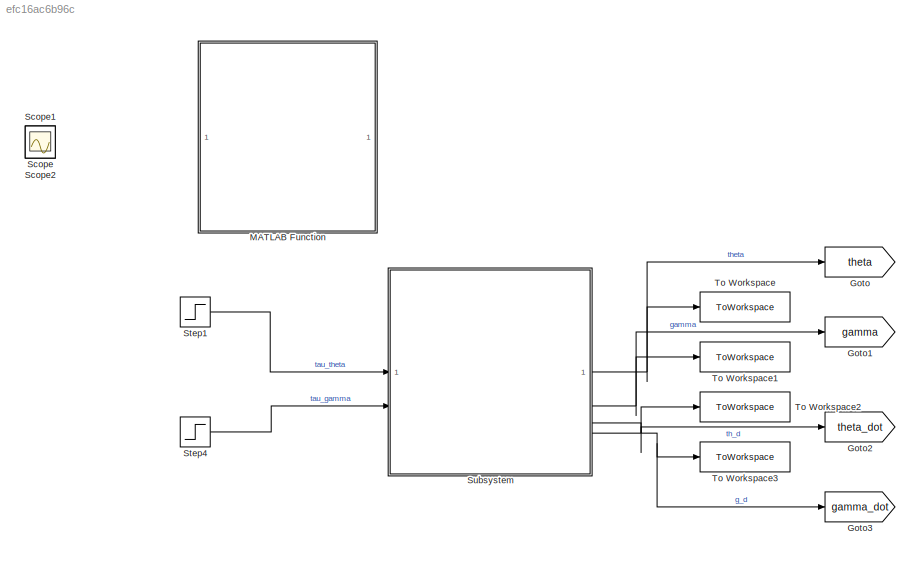
MODEL slx_efc16ac6b96c
KIND model
CONFIG AbsTol = auto
CONFIG EnableMultiTasking = off
CONFIG FixedStep = dt
CONFIG MaxStep = auto
CONFIG MinStep = auto
CONFIG RelTol = 1e-3
CONFIG SampleTimeConstraint = Unconstrained
CONFIG SolverName = FixedStepAuto
CONFIG StartTime = 0.0
CONFIG StopTime = tsim
BLOCK [Goto] Goto
  GotoTag = theta
BLOCK [Goto] Goto1
  GotoTag = gamma
BLOCK [Goto] Goto2
  GotoTag = theta_dot
BLOCK [Goto] Goto3
  GotoTag = gamma_dot
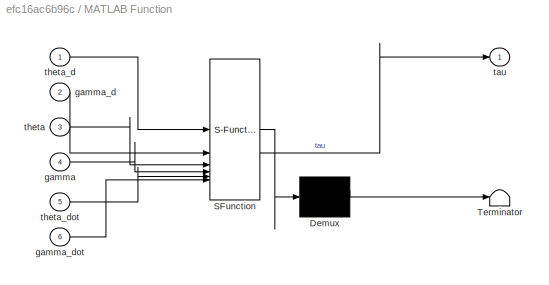
BLOCK [SubSystem] MATLAB Function
  Commented = on
  ErrorFcn = Stateflow.Translate.translate
  LibrarySourceBlock = simulink/User-Defined\nFunctions/MATLAB Function
  PermitHierarchicalResolution = ExplicitOnly
  SFBlockType = MATLAB Function
  TreatAsAtomicUnit = on
BLOCK [Demux] MATLAB Function/ Demux 
  Outputs = 1
BLOCK [S-Function] MATLAB Function/ SFunction 
  EnableBusSupport = on
  FunctionName = sf_sfun
  Parameters = Kp,Kv
  PortCounts = [6 2]
  SFcnIsStateOwnerBlock = off
  SFunctionDeploymentMode = off
  Tag = Stateflow S-Function 2
BLOCK [Terminator] MATLAB Function/ Terminator 
BLOCK [Inport] MATLAB Function/gamma
  Port = 4
BLOCK [Inport] MATLAB Function/gamma_d
  Port = 2
BLOCK [Inport] MATLAB Function/gamma_dot
  Port = 6
BLOCK [Outport] MATLAB Function/tau
BLOCK [Inport] MATLAB Function/theta
  Port = 3
BLOCK [Inport] MATLAB Function/theta_d
BLOCK [Inport] MATLAB Function/theta_dot
  Port = 5
BLOCK [Scope] Scope
  Floating = off
  IOType = viewer
  NumInputPorts = 1
  ScopeSpecificationString = Simulink.scopes.TimeScopeBlockCfg('CurrentConfiguration', extmgr.ConfigurationSet(extmgr.Configuration('Core','General UI',true),extmgr.Configuration('Core','Source UI',true),extmgr.Configuration('Sources','WiredSimulink',true),extmgr.Configuration('Visuals','Time Domain',true,'SerializedDisplays',{struct('MinYLimReal','-3.42234','MaxYLimReal','3.61448','YLabelReal','','MinYLimMag','0.00000','MaxY...<+1495ch>
BLOCK [Scope] Scope1
  Floating = off
  IOType = viewer
  NumInputPorts = 1
  ScopeSpecificationString = Simulink.scopes.TimeScopeBlockCfg('CurrentConfiguration', extmgr.ConfigurationSet(extmgr.Configuration('Core','General UI',true),extmgr.Configuration('Core','Source UI',true),extmgr.Configuration('Sources','WiredSimulink',true,'DataLoggingVariableName','ScopeData1'),extmgr.Configuration('Visuals','Time Domain',true,'SerializedDisplays',{struct('MinYLimReal','-51.85687','MaxYLimReal','51.03657','YL...<+1375ch>
BLOCK [Scope] Scope2
  Floating = off
  IOType = viewer
  NumInputPorts = 1
  ScopeSpecificationString = Simulink.scopes.TimeScopeBlockCfg('CurrentConfiguration', extmgr.ConfigurationSet(extmgr.Configuration('Core','General UI',true),extmgr.Configuration('Core','Source UI',true),extmgr.Configuration('Sources','WiredSimulink',true,'DataLoggingVariableName','ScopeData1'),extmgr.Configuration('Visuals','Time Domain',true,'SerializedDisplays',{struct('MinYLimReal','-734.53672','MaxYLimReal','793.14258','...<+1427ch>
BLOCK [Step] Step1
  After = 0
  SampleTime = dt
BLOCK [Step] Step4
  After = 0
  SampleTime = dt
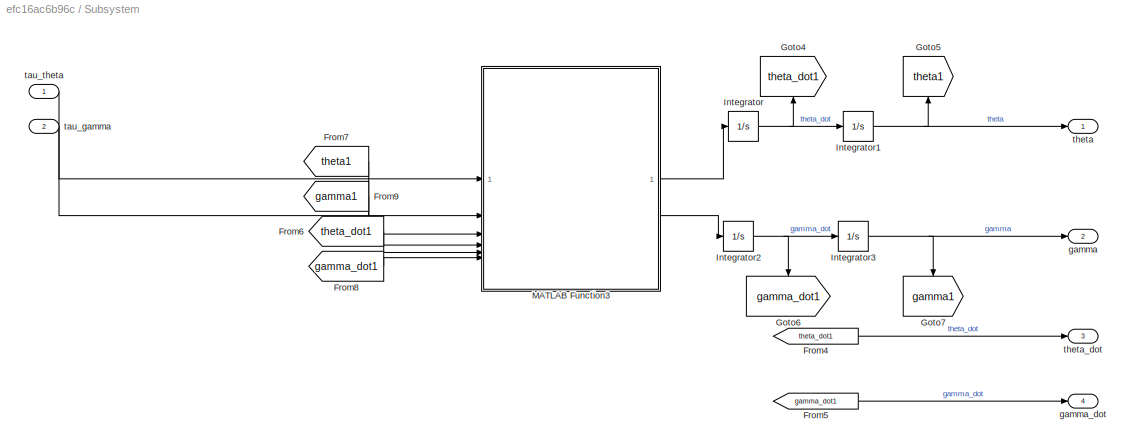
BLOCK [SubSystem] Subsystem
BLOCK [From] Subsystem/From4
  GotoTag = theta_dot1
BLOCK [From] Subsystem/From5
  GotoTag = gamma_dot1
BLOCK [From] Subsystem/From6
  GotoTag = theta_dot1
BLOCK [From] Subsystem/From7
  GotoTag = theta1
BLOCK [From] Subsystem/From8
  GotoTag = gamma_dot1
BLOCK [From] Subsystem/From9
  GotoTag = gamma1
BLOCK [Goto] Subsystem/Goto4
  GotoTag = theta_dot1
  NameLocation = right
BLOCK [Goto] Subsystem/Goto5
  GotoTag = theta1
  NameLocation = right
BLOCK [Goto] Subsystem/Goto6
  GotoTag = gamma_dot1
  NameLocation = left
BLOCK [Goto] Subsystem/Goto7
  GotoTag = gamma1
  NameLocation = left
BLOCK [Integrator] Subsystem/Integrator
  ContinuousStateAttributes = 'theta_dot'
BLOCK [Integrator] Subsystem/Integrator1
  ContinuousStateAttributes = 'theta'
  LowerSaturationLimit = -pi/3
  UpperSaturationLimit = 2*pi/9
  WrapState = on
BLOCK [Integrator] Subsystem/Integrator2
  ContinuousStateAttributes = 'gamma_dot'
BLOCK [Integrator] Subsystem/Integrator3
  ContinuousStateAttributes = 'gamma'
  LowerSaturationLimit = -pi/3
  UpperSaturationLimit = 2*pi/9
  WrapState = on
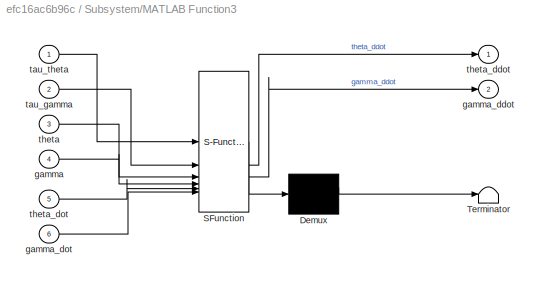
BLOCK [SubSystem] Subsystem/MATLAB Function3
  ErrorFcn = Stateflow.Translate.translate
  LibrarySourceBlock = simulink/User-Defined\nFunctions/MATLAB Function
  PermitHierarchicalResolution = ExplicitOnly
  SFBlockType = MATLAB Function
  TreatAsAtomicUnit = on
BLOCK [Demux] Subsystem/MATLAB Function3/ Demux 
  Outputs = 1
BLOCK [S-Function] Subsystem/MATLAB Function3/ SFunction 
  EnableBusSupport = on
  FunctionName = sf_sfun
  Parameters = I_by,I_hy,g,l_b,l_h,m_h
  PortCounts = [6 3]
  SFcnIsStateOwnerBlock = off
  SFunctionDeploymentMode = off
  Tag = Stateflow S-Function 3
BLOCK [Terminator] Subsystem/MATLAB Function3/ Terminator 
BLOCK [Inport] Subsystem/MATLAB Function3/gamma
  Port = 4
BLOCK [Outport] Subsystem/MATLAB Function3/gamma_ddot
  Port = 2
BLOCK [Inport] Subsystem/MATLAB Function3/gamma_dot
  Port = 6
BLOCK [Inport] Subsystem/MATLAB Function3/tau_gamma
  Port = 2
BLOCK [Inport] Subsystem/MATLAB Function3/tau_theta
BLOCK [Inport] Subsystem/MATLAB Function3/theta
  Port = 3
BLOCK [Outport] Subsystem/MATLAB Function3/theta_ddot
BLOCK [Inport] Subsystem/MATLAB Function3/theta_dot
  Port = 5
BLOCK [Outport] Subsystem/gamma
  Port = 2
BLOCK [Outport] Subsystem/gamma_dot
  Port = 4
BLOCK [Inport] Subsystem/tau_gamma
  Port = 2
BLOCK [Inport] Subsystem/tau_theta
BLOCK [Outport] Subsystem/theta
BLOCK [Outport] Subsystem/theta_dot
  Port = 3
BLOCK [ToWorkspace] To Workspace
  FixptAsFi = on
  MaxDataPoints = inf
  SampleTime = dt
  SaveFormat = Timeseries
  VariableName = theta
BLOCK [ToWorkspace] To Workspace1
  FixptAsFi = on
  MaxDataPoints = inf
  SampleTime = dt
  SaveFormat = Timeseries
  VariableName = gamma
BLOCK [ToWorkspace] To Workspace2
  FixptAsFi = on
  MaxDataPoints = inf
  SampleTime = dt
  SaveFormat = Timeseries
  VariableName = theta_dot
BLOCK [ToWorkspace] To Workspace3
  FixptAsFi = on
  MaxDataPoints = inf
  SampleTime = dt
  SaveFormat = Timeseries
  VariableName = gamma_dot
LINE Step1:1 -> Subsystem:1
LINE Step4:1 -> Subsystem:2
LINE Subsystem/From4:1 -> Subsystem/theta_dot:1
LINE Subsystem/From5:1 -> Subsystem/gamma_dot:1
LINE Subsystem/From6:1 -> Subsystem/MATLAB Function3:5
LINE Subsystem/From7:1 -> Subsystem/MATLAB Function3:3
LINE Subsystem/From8:1 -> Subsystem/MATLAB Function3:6
LINE Subsystem/From9:1 -> Subsystem/MATLAB Function3:4
NET Subsystem/Integrator1:1 -> Subsystem/Goto5:1, Subsystem/theta:1
NET Subsystem/Integrator2:1 -> Subsystem/Goto6:1, Subsystem/Integrator3:1
NET Subsystem/Integrator3:1 -> Subsystem/Goto7:1, Subsystem/gamma:1
NET Subsystem/Integrator:1 -> Subsystem/Goto4:1, Subsystem/Integrator1:1
LINE Subsystem/MATLAB Function3:1 -> Subsystem/Integrator:1
LINE Subsystem/MATLAB Function3:2 -> Subsystem/Integrator2:1
LINE Subsystem/tau_gamma:1 -> Subsystem/MATLAB Function3:2
LINE Subsystem/tau_theta:1 -> Subsystem/MATLAB Function3:1
NET Subsystem:1 -> Goto:1, To Workspace:1
NET Subsystem:2 -> Goto1:1, To Workspace1:1
NET Subsystem:3 -> Goto2:1, To Workspace2:1
NET Subsystem:4 -> Goto3:1, To Workspace3:1
note: NET lines group one-source signal fan-out (src -> all destinations, sorted); 1:1 wires keep LINE
CHART MATLAB Function states=1 transitions=1
  STATE_LABEL 'eML_blk_kernel()'
  STATE_LABEL 'SCRIPT:\nfunction tau  = controller(theta_d, gamma_d, theta, gamma, theta_dot, gamma_dot, Kv, Kp)\n\ntau = MKp*[theta_d-theta;gamma_d-gamma]-Kv*[theta_dot;gamma_dot];\n'
CHART Subsystem/MATLAB Function3 states=1 transitions=1
  STATE_LABEL 'eML_blk_kernel()'
  STATE_LABEL 'SCRIPT:\nfunction [theta_ddot, gamma_ddot] = fcn(tau_theta, tau_gamma,theta,gamma,theta_dot,gamma_dot, I_hy, m_h, l_b, l_h, I_by,g)\n\ntau = [tau_theta;tau_gamma];\n\nm11 = I_hy+I_by+m_h*(l_b^2+l_h^2)+2*l_b*l_h*m_h*cos(gamma);\nm12 = I_hy+m_h*l_h^2+l_b*l_h*m_h*cos(gamma);\nm22 = I_hy + l_h^2*m_h;\n\nM=[m11 m12;\n   m12 m22];\n\n\nc11 = -l_b*l_h*m_h*sin(gamma)*gamma_dot;\nc12 = -(gamma_dot+theta_dot)*l_b*l_h*m_h...<+297ch>'
CHART  states=0 transitions=0
CHART  states=0 transitions=0
